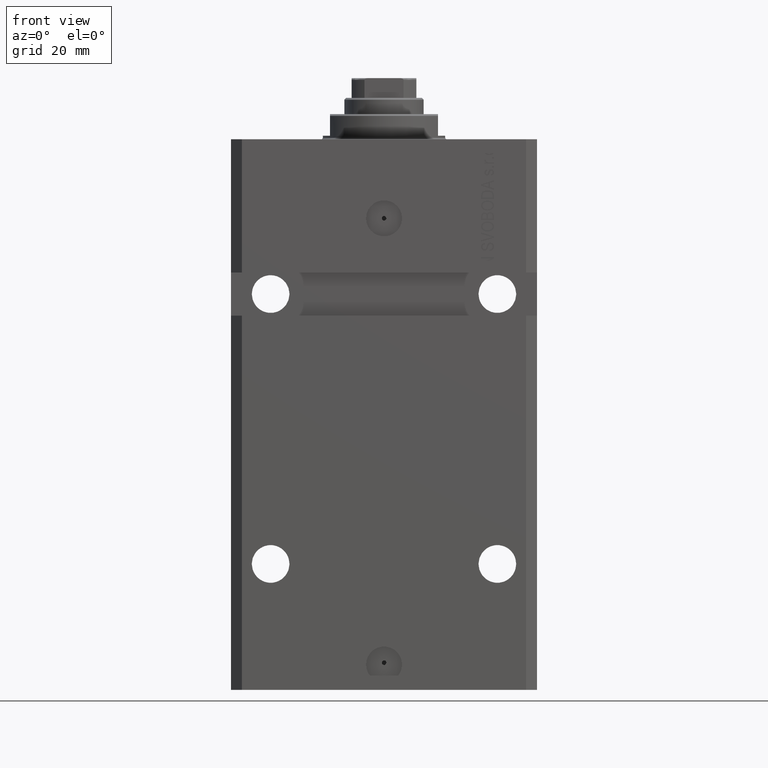
[diagram: clean part render]
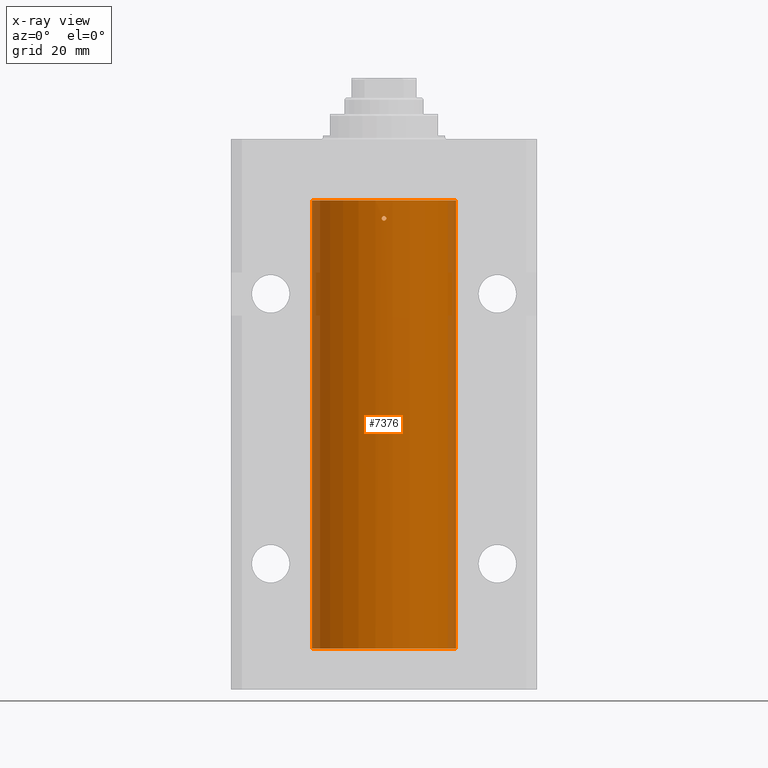
[diagram: x-ray — body ghosted, one internal face saturated and labeled with its STEP entity id]
A machine part, front view, then the same camera in x-ray: the body is ghosted and one INTERNAL B-rep face — a face not visible from any outside direction — is saturated and labeled: STEP entity #7376.
In plain terms, the highlighted cylindrical surface (partial cylindrical patch) has radius 20 mm, axis along (0, 0, 1).
Its self-contained STEP definition (entity closure, byte-faithful):
#471 = ORIENTED_EDGE ( 'NONE', *, *, #38623, .T. ) ;
#1052 = CARTESIAN_POINT ( 'NONE',  ( 20.00000000000000000, 0.000000000000000000, -141.5999999999999943 ) ) ;
#1110 = EDGE_CURVE ( 'NONE', #6662, #28679, #21536, .T. ) ;
#1942 = CARTESIAN_POINT ( 'NONE',  ( -20.00000000000000000, 2.449293598294706513E-15, -141.5999999999999943 ) ) ;
#2217 = ORIENTED_EDGE ( 'NONE', *, *, #9582, .F. ) ;
#2294 = VECTOR ( 'NONE', #44459, 1000.000000000000000 ) ;
#4738 = LINE ( 'NONE', #34911, #11109 ) ;
#4886 = CARTESIAN_POINT ( 'NONE',  ( -19.99765984516761819, -0.3269569594423944459, -23.44291008943298849 ) ) ;
#5101 = VERTEX_POINT ( 'NONE', #37206 ) ;
#5342 = ORIENTED_EDGE ( 'NONE', *, *, #37931, .F. ) ;
#5469 = DIRECTION ( 'NONE',  ( -0.000000000000000000, -0.000000000000000000, 1.000000000000000000 ) ) ;
#6259 = VERTEX_POINT ( 'NONE', #47604 ) ;
#6285 = DIRECTION ( 'NONE',  ( -0.000000000000000000, -0.000000000000000000, 1.000000000000000000 ) ) ;
#6393 = CARTESIAN_POINT ( 'NONE',  ( 20.00000000000000000, 0.000000000000000000, -17.00000000000000000 ) ) ;
#6662 = VERTEX_POINT ( 'NONE', #24660 ) ;
#7141 = CARTESIAN_POINT ( 'NONE',  ( -20.00000000000000355, -0.1631318982819169039, -139.6250000000001990 ) ) ;
#7376 = ADVANCED_FACE ( 'NONE', ( #47386, #44633 ), #11314, .F. ) ;
#7633 = ORIENTED_EDGE ( 'NONE', *, *, #1110, .T. ) ;
#8063 = CARTESIAN_POINT ( 'NONE',  ( -20.00000000000000000, -0.1651542110816374143, -23.37500000000000355 ) ) ;
#8113 = EDGE_LOOP ( 'NONE', ( #39383, #11354 ) ) ;
#8506 = AXIS2_PLACEMENT_3D ( 'NONE', #24538, #6285, #35967 ) ;
#8511 = CARTESIAN_POINT ( 'NONE',  ( -20.00000000000000000, 2.449293598294706513E-15, -141.5999999999999943 ) ) ;
#9582 = EDGE_CURVE ( 'NONE', #20963, #18193, #47432, .T. ) ;
#9601 = CARTESIAN_POINT ( 'NONE',  ( 0.1643369734423495987, -20.00000429769607280, -22.62513752632251851 ) ) ;
#9919 = B_SPLINE_CURVE_WITH_KNOTS ( 'NONE', 3,
 ( #33361, #15316, #28188, #45939, #27227, #27710, #42071, #19925, #12632, #42782, #39144, #12875 ),
 .UNSPECIFIED., .F., .F.,
 ( 4, 2, 2, 2, 2, 4 ),
 ( 0.000000000000000000, 0.0002442693132668051579, 0.0004885386265336103158, 0.0009770772530672282210, 0.001465615879600846126, 0.001954154506134463815 ),
 .UNSPECIFIED. ) ;
#11109 = VECTOR ( 'NONE', #5469, 1000.000000000000000 ) ;
#11314 = CYLINDRICAL_SURFACE ( 'NONE', #8506, 20.00000000000000000 ) ;
#11354 = ORIENTED_EDGE ( 'NONE', *, *, #37554, .T. ) ;
#12166 = CARTESIAN_POINT ( 'NONE',  ( -19.99765984516762174, -0.3269569594424133196, -138.4429100894329565 ) ) ;
#12449 = EDGE_CURVE ( 'NONE', #6259, #5101, #16073, .T. ) ;
#12534 = CARTESIAN_POINT ( 'NONE',  ( -0.6250000000001382228, -19.99023198964934167, -22.16313189841578080 ) ) ;
#12632 = CARTESIAN_POINT ( 'NONE',  ( -0.3251162203622516289, -19.99769811469285230, -21.44128795971509405 ) ) ;
#12770 = CARTESIAN_POINT ( 'NONE',  ( -0.1653813832397391104, -19.99999568866902067, -22.62486203736067125 ) ) ;
#12875 = CARTESIAN_POINT ( 'NONE',  ( -0.6250000000033326675, -19.99023198964924219, -21.99999999999967315 ) ) ;
#13256 = CARTESIAN_POINT ( 'NONE',  ( -0.6250000000033326675, -19.99023198964924219, -21.99999999999967315 ) ) ;
#15316 = CARTESIAN_POINT ( 'NONE',  ( 0.6250000000000028866, -19.99023198964935233, -21.91740418326171280 ) ) ;
#15803 = CARTESIAN_POINT ( 'NONE',  ( -20.00000000000000000, -0.1651542110816556219, -138.3749999999999716 ) ) ;
#16073 = LINE ( 'NONE', #1942, #31224 ) ;
#16074 = CARTESIAN_POINT ( 'NONE',  ( -19.99022768983530440, -0.6251375268965866372, -23.83566303088218064 ) ) ;
#16179 = VERTEX_POINT ( 'NONE', #23786 ) ;
#16316 = CARTESIAN_POINT ( 'NONE',  ( -19.99023630310506761, -0.6248620367829522682, -24.16538138329532259 ) ) ;
#16653 = CARTESIAN_POINT ( 'NONE',  ( -0.5574110886242996665, -19.99256263711735215, -22.32630989244538711 ) ) ;
#18186 = LINE ( 'NONE', #22079, #2294 ) ;
#18193 = VERTEX_POINT ( 'NONE', #1052 ) ;
#19397 = ORIENTED_EDGE ( 'NONE', *, *, #12449, .T. ) ;
#19413 = VECTOR ( 'NONE', #45708, 1000.000000000000000 ) ;
#19464 = AXIS2_PLACEMENT_3D ( 'NONE', #46069, #42674, #31753 ) ;
#19925 = CARTESIAN_POINT ( 'NONE',  ( -0.1628481006860607039, -20.00000180872260813, -21.37494212087287337 ) ) ;
#20064 = CARTESIAN_POINT ( 'NONE',  ( 0.5570899181683264256, -19.99257333899569744, -22.32695694742785619 ) ) ;
#20448 = DIRECTION ( 'NONE',  ( -0.000000000000000000, -0.000000000000000000, 1.000000000000000000 ) ) ;
#20963 = VERTEX_POINT ( 'NONE', #42557 ) ;
#21118 = DIRECTION ( 'NONE',  ( 0.000000000000000000, 0.000000000000000000, 1.000000000000000000 ) ) ;
#21536 = CIRCLE ( 'NONE', #38728, 20.00000000000000000 ) ;
#21972 = CARTESIAN_POINT ( 'NONE',  ( -19.99767054355995555, -0.3263099029014812080, -139.5574110824076683 ) ) ;
#22079 = CARTESIAN_POINT ( 'NONE',  ( 20.00000000000000000, 0.000000000000000000, -141.5999999999999943 ) ) ;
#22897 = CARTESIAN_POINT ( 'NONE',  ( -20.00000000000000000, -2.867584836844214272E-15, -23.37500000000000000 ) ) ;
#23113 = CARTESIAN_POINT ( 'NONE',  ( -20.00000000000000000, -1.756252550797319649E-14, -138.3749999999999716 ) ) ;
#23143 = CARTESIAN_POINT ( 'NONE',  ( -20.00000000000000355, -0.1631318982819147112, -24.62500000000014566 ) ) ;
#23376 = CARTESIAN_POINT ( 'NONE',  ( -20.00000000000010303, 3.580159282543646009E-13, -24.62500000000332889 ) ) ;
#23786 = CARTESIAN_POINT ( 'NONE',  ( -20.00000000000010303, 3.580159249456421507E-13, -139.6250000000033253 ) ) ;
#23968 = CARTESIAN_POINT ( 'NONE',  ( 0.3261666526553446133, -19.99767369487616264, -22.55755299038902706 ) ) ;
#24072 = LINE ( 'NONE', #8511, #19413 ) ;
#24534 = DIRECTION ( 'NONE',  ( 1.000000000000000000, 0.000000000000000000, 0.000000000000000000 ) ) ;
#24538 = CARTESIAN_POINT ( 'NONE',  ( 0.000000000000000000, 0.000000000000000000, -141.5999999999999943 ) ) ;
#24660 = CARTESIAN_POINT ( 'NONE',  ( -20.00000000000000000, 2.449293598294706513E-15, -17.00000000000000000 ) ) ;
#25209 = VERTEX_POINT ( 'NONE', #40758 ) ;
#25873 = CARTESIAN_POINT ( 'NONE',  ( -19.99255948581289033, -0.5575529953197855271, -138.6738333567126915 ) ) ;
#27022 = B_SPLINE_CURVE_WITH_KNOTS ( 'NONE', 3,
 ( #37959, #7141, #21972, #45474, #29045, #33429, #25873, #12166, #15803, #23113 ),
 .UNSPECIFIED., .F., .F.,
 ( 4, 2, 2, 2, 4 ),
 ( 0.001954154509844256270, 0.002442582466643829480, 0.002931010423443403123, 0.003419438380242976333, 0.003907866337042549543 ),
 .UNSPECIFIED. ) ;
#27227 = CARTESIAN_POINT ( 'NONE',  ( 0.4995363768272698679, -19.99384383563509360, -21.61563220462100432 ) ) ;
#27605 = CARTESIAN_POINT ( 'NONE',  ( -0.3270944962368909081, -19.99765679051705902, -22.55695103748945129 ) ) ;
#27710 = CARTESIAN_POINT ( 'NONE',  ( 0.3265143537867915002, -19.99766736494331809, -21.44267231150418240 ) ) ;
#27757 = CARTESIAN_POINT ( 'NONE',  ( -19.99257639367449357, -0.5569510432580226933, -24.32709448625169557 ) ) ;
#28089 = CARTESIAN_POINT ( 'NONE',  ( 0.6250000000000026645, -19.99023198964934522, -22.00000000000000000 ) ) ;
#28188 = CARTESIAN_POINT ( 'NONE',  ( 0.6087363597162602780, -19.99075850180857117, -21.83635608258754957 ) ) ;
#28679 = VERTEX_POINT ( 'NONE', #6393 ) ;
#29045 = CARTESIAN_POINT ( 'NONE',  ( -19.99023630310506761, -0.6248620367829763600, -139.1653813832952835 ) ) ;
#30634 = CARTESIAN_POINT ( 'NONE',  ( -0.6250000000033326675, -19.99023198964924219, -21.99999999999967315 ) ) ;
#30729 = CARTESIAN_POINT ( 'NONE',  ( 0.6250000000000026645, -19.99023198964934522, -22.00000000000000000 ) ) ;
#31170 = CARTESIAN_POINT ( 'NONE',  ( -19.99255948581289744, -0.5575529953197640998, -23.67383335671266309 ) ) ;
#31224 = VECTOR ( 'NONE', #20448, 1000.000000000000000 ) ;
#31604 = CARTESIAN_POINT ( 'NONE',  ( 0.000000000000000000, 0.000000000000000000, -17.00000000000000000 ) ) ;
#31753 = DIRECTION ( 'NONE',  ( 1.000000000000000000, 0.000000000000000000, 0.000000000000000000 ) ) ;
#33361 = CARTESIAN_POINT ( 'NONE',  ( 0.6250000000000026645, -19.99023198964934522, -22.00000000000000000 ) ) ;
#33429 = CARTESIAN_POINT ( 'NONE',  ( -19.99022768983530440, -0.6251375268966054000, -138.8356630308821593 ) ) ;
#33436 = ORIENTED_EDGE ( 'NONE', *, *, #40178, .T. ) ;
#34911 = CARTESIAN_POINT ( 'NONE',  ( -20.00000000000000000, 2.449293598294706513E-15, -141.5999999999999943 ) ) ;
#34914 = CARTESIAN_POINT ( 'NONE',  ( 0.6250000000000026645, -19.99023198964934522, -22.16515421183406076 ) ) ;
#35967 = DIRECTION ( 'NONE',  ( 1.000000000000000000, 0.000000000000000000, 0.000000000000000000 ) ) ;
#37073 = EDGE_LOOP ( 'NONE', ( #2217, #471, #46731, #19397, #44193, #33436, #7633, #5342 ) ) ;
#37206 = CARTESIAN_POINT ( 'NONE',  ( -20.00000000000010303, 3.580159282543646009E-13, -24.62500000000332889 ) ) ;
#37554 = EDGE_CURVE ( 'NONE', #40847, #42054, #46928, .T. ) ;
#37931 = EDGE_CURVE ( 'NONE', #18193, #28679, #18186, .T. ) ;
#37959 = CARTESIAN_POINT ( 'NONE',  ( -20.00000000000010303, 3.580159249456421507E-13, -139.6250000000033253 ) ) ;
#38220 = CARTESIAN_POINT ( 'NONE',  ( -19.99767054355995555, -0.3263099029014763230, -24.55741108240767190 ) ) ;
#38623 = EDGE_CURVE ( 'NONE', #20963, #16179, #24072, .T. ) ;
#38728 = AXIS2_PLACEMENT_3D ( 'NONE', #31604, #21118, #24534 ) ;
#39144 = CARTESIAN_POINT ( 'NONE',  ( -0.6249999999998574474, -19.99023198964934878, -21.83683113816865529 ) ) ;
#39383 = ORIENTED_EDGE ( 'NONE', *, *, #44247, .T. ) ;
#39557 = EDGE_CURVE ( 'NONE', #16179, #6259, #27022, .T. ) ;
#40178 = EDGE_CURVE ( 'NONE', #25209, #6662, #4738, .T. ) ;
#40758 = CARTESIAN_POINT ( 'NONE',  ( -20.00000000000000000, -2.867584836844214272E-15, -23.37500000000000000 ) ) ;
#40847 = VERTEX_POINT ( 'NONE', #30634 ) ;
#41368 = B_SPLINE_CURVE_WITH_KNOTS ( 'NONE', 3,
 ( #23376, #23143, #38220, #27757, #16316, #16074, #31170, #4886, #8063, #22897 ),
 .UNSPECIFIED., .F., .F.,
 ( 4, 2, 2, 2, 4 ),
 ( 0.001954154509844215938, 0.002442582466643772668, 0.002931010423443329831, 0.003419438380242886995, 0.003907866337042443725 ),
 .UNSPECIFIED. ) ;
#42054 = VERTEX_POINT ( 'NONE', #30729 ) ;
#42071 = CARTESIAN_POINT ( 'NONE',  ( 0.1632920704146597346, -19.99999818881353164, -21.37505795797077823 ) ) ;
#42557 = CARTESIAN_POINT ( 'NONE',  ( -20.00000000000000000, 2.449293598294706513E-15, -141.5999999999999943 ) ) ;
#42674 = DIRECTION ( 'NONE',  ( 0.000000000000000000, 0.000000000000000000, 1.000000000000000000 ) ) ;
#42782 = CARTESIAN_POINT ( 'NONE',  ( -0.5585582113630487289, -19.99253968778482360, -21.67461956847272830 ) ) ;
#43050 = EDGE_CURVE ( 'NONE', #5101, #25209, #41368, .T. ) ;
#44193 = ORIENTED_EDGE ( 'NONE', *, *, #43050, .T. ) ;
#44247 = EDGE_CURVE ( 'NONE', #42054, #40847, #9919, .T. ) ;
#44459 = DIRECTION ( 'NONE',  ( -0.000000000000000000, -0.000000000000000000, 1.000000000000000000 ) ) ;
#44633 = FACE_OUTER_BOUND ( 'NONE', #37073, .T. ) ;
#45474 = CARTESIAN_POINT ( 'NONE',  ( -19.99257639367449357, -0.5569510432580330184, -139.3270944862516671 ) ) ;
#45708 = DIRECTION ( 'NONE',  ( -0.000000000000000000, -0.000000000000000000, 1.000000000000000000 ) ) ;
#45939 = CARTESIAN_POINT ( 'NONE',  ( 0.5459793025363884889, -19.99257092108152634, -21.68496684531850249 ) ) ;
#46069 = CARTESIAN_POINT ( 'NONE',  ( 0.000000000000000000, 0.000000000000000000, -141.5999999999999943 ) ) ;
#46731 = ORIENTED_EDGE ( 'NONE', *, *, #39557, .T. ) ;
#46928 = B_SPLINE_CURVE_WITH_KNOTS ( 'NONE', 3,
 ( #13256, #12534, #16653, #27605, #12770, #9601, #23968, #20064, #34914, #28089 ),
 .UNSPECIFIED., .F., .F.,
 ( 4, 2, 2, 2, 4 ),
 ( 0.001954154506134463815, 0.002442582461700956980, 0.002931010417267450145, 0.003419438372833943311, 0.003907866328400436476 ),
 .UNSPECIFIED. ) ;
#47386 = FACE_BOUND ( 'NONE', #8113, .T. ) ;
#47432 = CIRCLE ( 'NONE', #19464, 20.00000000000000000 ) ;
#47604 = CARTESIAN_POINT ( 'NONE',  ( -20.00000000000000000, -1.756252550797319649E-14, -138.3749999999999716 ) ) ;